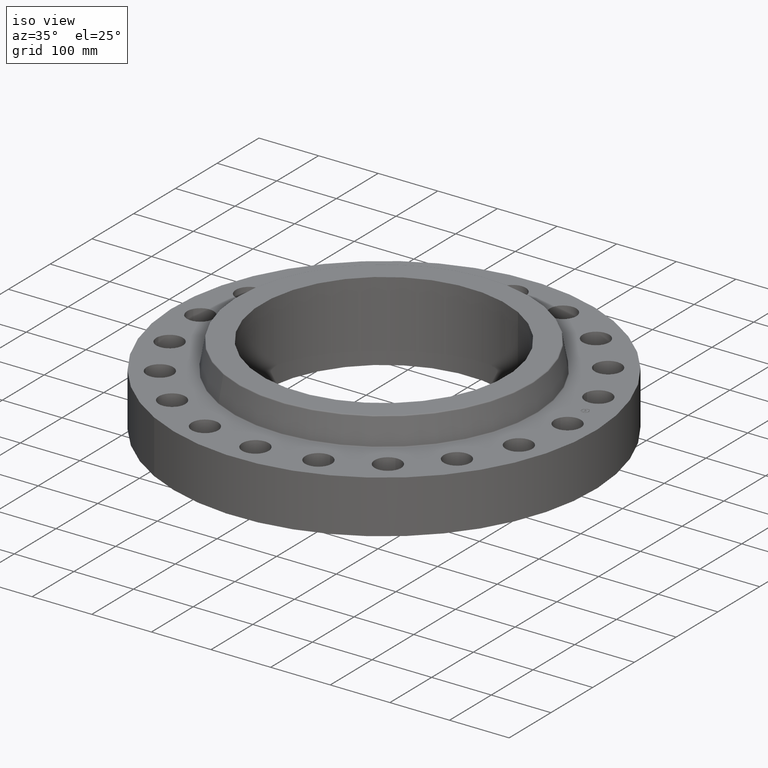
[diagram: clean part render]
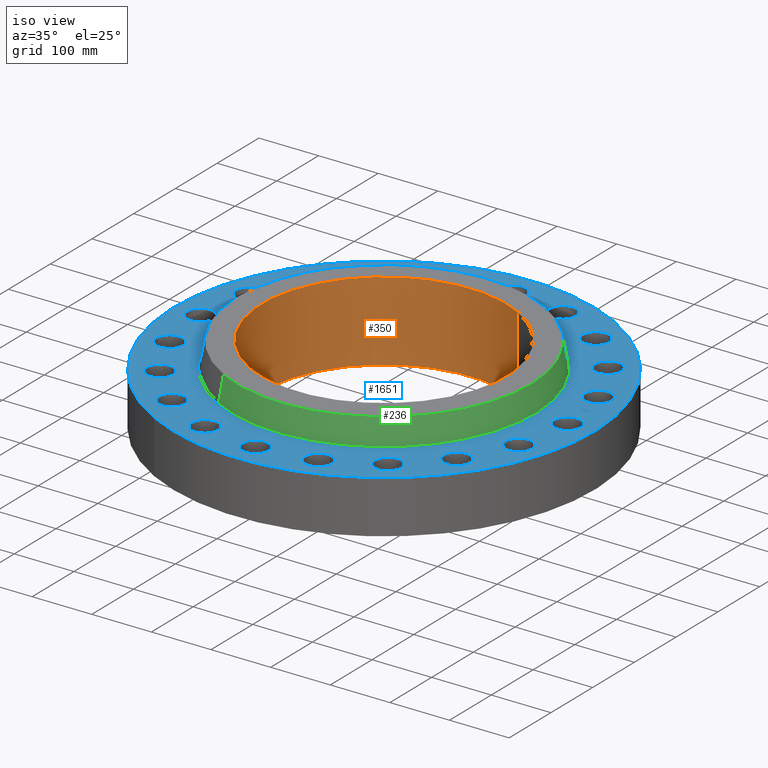
[diagram: same view with three faces highlighted in distinct colors, each labeled with its STEP entity id]
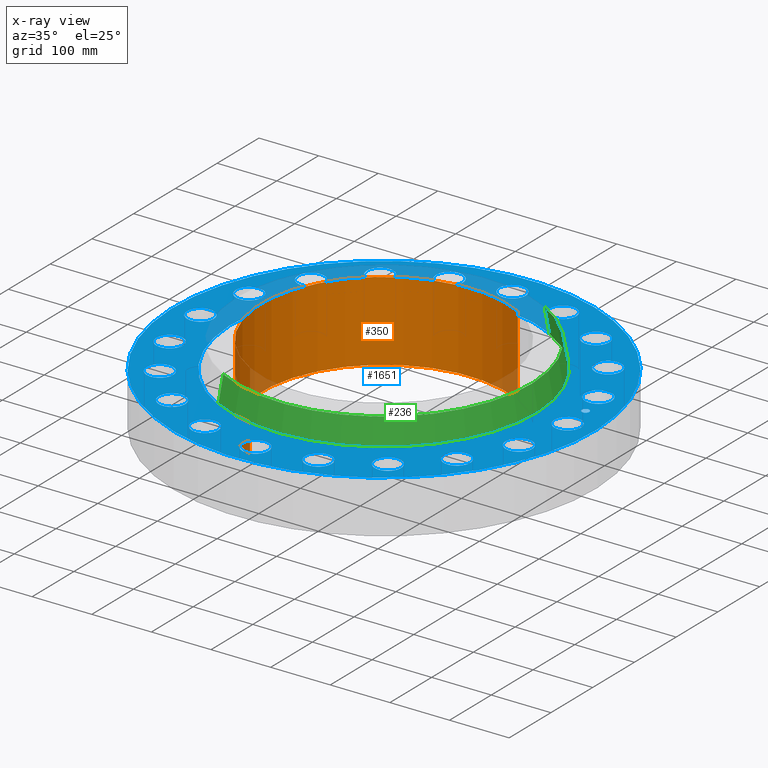
[diagram: x-ray of the same camera — body ghosted, the three highlighted faces saturated]
A machine part, iso view with three faces highlighted in distinct colors.
The next image is the same camera in x-ray (body ghosted, the three faces saturated) — at least one of them is partly hidden behind the body in this view.
Their STEP definitions:

[orange] entity #350 — the highlighted cylindrical surface (partial cylindrical patch) has radius 205.232 mm, axis along (0, 0, -1).
#303=AXIS2_PLACEMENT_3D('Circle Axis2P3D',#301,#302,$) ;
#323=AXIS2_PLACEMENT_3D('Cylinder Axis2P3D',#320,#321,#322) ;
#334=AXIS2_PLACEMENT_3D('Circle Axis2P3D',#332,#333,$) ;
#301=CARTESIAN_POINT('Axis2P3D Location',(0.,0.,5.25000000002)) ;
#305=CARTESIAN_POINT('Vertex',(-3.87375835194,-7.0908671001,5.25000000002)) ;
#307=CARTESIAN_POINT('Vertex',(3.87375835194,7.0908671001,5.25000000002)) ;
#320=CARTESIAN_POINT('Axis2P3D Location',(0.,0.,2.62500000001)) ;
#325=CARTESIAN_POINT('Line Origine',(-3.87375835194,-7.0908671001,2.62500000001)) ;
#329=CARTESIAN_POINT('Vertex',(-3.87375835194,-7.0908671001,-1.17491318512E-014)) ;
#332=CARTESIAN_POINT('Axis2P3D Location',(0.,0.,-1.23086143203E-014)) ;
#336=CARTESIAN_POINT('Vertex',(3.87375835194,7.0908671001,-1.17491318512E-014)) ;
#339=CARTESIAN_POINT('Line Origine',(3.87375835194,7.0908671001,2.62500000001)) ;
#302=DIRECTION('Axis2P3D Direction',(0.,0.,-0.0393700787402)) ;
#321=DIRECTION('Axis2P3D Direction',(0.,0.,-0.0393700787402)) ;
#322=DIRECTION('Axis2P3D XDirection',(0.0188750212049,0.0345504945626,0.)) ;
#326=DIRECTION('Vector Direction',(0.,0.,-0.0393700787402)) ;
#333=DIRECTION('Axis2P3D Direction',(0.,0.,-0.0393700787402)) ;
#340=DIRECTION('Vector Direction',(0.,0.,-0.0393700787402)) ;
#327=VECTOR('Line Direction',#326,0.0393700787402) ;
#341=VECTOR('Line Direction',#340,0.0393700787402) ;
#345=ORIENTED_EDGE('',*,*,#309,.F.) ;
#346=ORIENTED_EDGE('',*,*,#331,.T.) ;
#347=ORIENTED_EDGE('',*,*,#338,.T.) ;
#348=ORIENTED_EDGE('',*,*,#343,.F.) ;
#350=ADVANCED_FACE('PartBody',(#349),#324,.F.) ;
#304=CIRCLE('generated circle',#303,8.08000000003) ;
#335=CIRCLE('generated circle',#334,8.08000000003) ;
#324=CYLINDRICAL_SURFACE('generated cylinder',#323,8.08000000003) ;
#309=EDGE_CURVE('',#306,#308,#304,.T.) ;
#331=EDGE_CURVE('',#306,#330,#328,.T.) ;
#338=EDGE_CURVE('',#330,#337,#335,.T.) ;
#343=EDGE_CURVE('',#308,#337,#342,.T.) ;
#344=EDGE_LOOP('',(#345,#346,#347,#348)) ;
#349=FACE_OUTER_BOUND('',#344,.T.) ;
#328=LINE('Line',#325,#327) ;
#342=LINE('Line',#339,#341) ;
#306=VERTEX_POINT('',#305) ;
#308=VERTEX_POINT('',#307) ;
#330=VERTEX_POINT('',#329) ;
#337=VERTEX_POINT('',#336) ;

[blue] entity #1651 — the highlighted planar face has unit normal (0, 0, -1).
#65=AXIS2_PLACEMENT_3D('Circle Axis2P3D',#63,#64,$) ;
#82=AXIS2_PLACEMENT_3D('Circle Axis2P3D',#80,#81,$) ;
#115=AXIS2_PLACEMENT_3D('Circle Axis2P3D',#113,#114,$) ;
#139=AXIS2_PLACEMENT_3D('Circle Axis2P3D',#137,#138,$) ;
#156=AXIS2_PLACEMENT_3D('Circle Axis2P3D',#154,#155,$) ;
#191=AXIS2_PLACEMENT_3D('Circle Axis2P3D',#189,#190,$) ;
#744=AXIS2_PLACEMENT_3D('Circle Axis2P3D',#742,#743,$) ;
#756=AXIS2_PLACEMENT_3D('Circle Axis2P3D',#754,#755,$) ;
#787=AXIS2_PLACEMENT_3D('Circle Axis2P3D',#785,#786,$) ;
#799=AXIS2_PLACEMENT_3D('Circle Axis2P3D',#797,#798,$) ;
#830=AXIS2_PLACEMENT_3D('Circle Axis2P3D',#828,#829,$) ;
#842=AXIS2_PLACEMENT_3D('Circle Axis2P3D',#840,#841,$) ;
#873=AXIS2_PLACEMENT_3D('Circle Axis2P3D',#871,#872,$) ;
#885=AXIS2_PLACEMENT_3D('Circle Axis2P3D',#883,#884,$) ;
#916=AXIS2_PLACEMENT_3D('Circle Axis2P3D',#914,#915,$) ;
#928=AXIS2_PLACEMENT_3D('Circle Axis2P3D',#926,#927,$) ;
#959=AXIS2_PLACEMENT_3D('Circle Axis2P3D',#957,#958,$) ;
#971=AXIS2_PLACEMENT_3D('Circle Axis2P3D',#969,#970,$) ;
#1002=AXIS2_PLACEMENT_3D('Circle Axis2P3D',#1000,#1001,$) ;
#1014=AXIS2_PLACEMENT_3D('Circle Axis2P3D',#1012,#1013,$) ;
#1045=AXIS2_PLACEMENT_3D('Circle Axis2P3D',#1043,#1044,$) ;
#1057=AXIS2_PLACEMENT_3D('Circle Axis2P3D',#1055,#1056,$) ;
#1088=AXIS2_PLACEMENT_3D('Circle Axis2P3D',#1086,#1087,$) ;
#1100=AXIS2_PLACEMENT_3D('Circle Axis2P3D',#1098,#1099,$) ;
#1131=AXIS2_PLACEMENT_3D('Circle Axis2P3D',#1129,#1130,$) ;
#1143=AXIS2_PLACEMENT_3D('Circle Axis2P3D',#1141,#1142,$) ;
#1174=AXIS2_PLACEMENT_3D('Circle Axis2P3D',#1172,#1173,$) ;
#1186=AXIS2_PLACEMENT_3D('Circle Axis2P3D',#1184,#1185,$) ;
#1217=AXIS2_PLACEMENT_3D('Circle Axis2P3D',#1215,#1216,$) ;
#1229=AXIS2_PLACEMENT_3D('Circle Axis2P3D',#1227,#1228,$) ;
#1260=AXIS2_PLACEMENT_3D('Circle Axis2P3D',#1258,#1259,$) ;
#1272=AXIS2_PLACEMENT_3D('Circle Axis2P3D',#1270,#1271,$) ;
#1303=AXIS2_PLACEMENT_3D('Circle Axis2P3D',#1301,#1302,$) ;
#1315=AXIS2_PLACEMENT_3D('Circle Axis2P3D',#1313,#1314,$) ;
#1346=AXIS2_PLACEMENT_3D('Circle Axis2P3D',#1344,#1345,$) ;
#1358=AXIS2_PLACEMENT_3D('Circle Axis2P3D',#1356,#1357,$) ;
#1389=AXIS2_PLACEMENT_3D('Circle Axis2P3D',#1387,#1388,$) ;
#1401=AXIS2_PLACEMENT_3D('Circle Axis2P3D',#1399,#1400,$) ;
#1432=AXIS2_PLACEMENT_3D('Circle Axis2P3D',#1430,#1431,$) ;
#1444=AXIS2_PLACEMENT_3D('Circle Axis2P3D',#1442,#1443,$) ;
#1475=AXIS2_PLACEMENT_3D('Circle Axis2P3D',#1473,#1474,$) ;
#1487=AXIS2_PLACEMENT_3D('Circle Axis2P3D',#1485,#1486,$) ;
#1518=AXIS2_PLACEMENT_3D('Circle Axis2P3D',#1516,#1517,$) ;
#1530=AXIS2_PLACEMENT_3D('Circle Axis2P3D',#1528,#1529,$) ;
#1543=AXIS2_PLACEMENT_3D('Plane Axis2P3D',#1540,#1541,#1542) ;
#1635=AXIS2_PLACEMENT_3D('Circle Axis2P3D',#1633,#1634,$) ;
#1644=AXIS2_PLACEMENT_3D('Circle Axis2P3D',#1642,#1643,$) ;
#46=CARTESIAN_POINT('Vertex',(11.3571152584,0.41949734628,3.50000000001)) ;
#60=CARTESIAN_POINT('Vertex',(12.8928847417,-0.41949734628,3.50000000001)) ;
#63=CARTESIAN_POINT('Axis2P3D Location',(12.125,0.,3.50000000001)) ;
#80=CARTESIAN_POINT('Axis2P3D Location',(12.125,0.,3.50000000001)) ;
#110=CARTESIAN_POINT('Vertex',(-6.65202934816,-12.1764580463,3.50000000001)) ;
#113=CARTESIAN_POINT('Axis2P3D Location',(0.,0.,3.50000000001)) ;
#117=CARTESIAN_POINT('Vertex',(6.65202934816,12.1764580463,3.50000000001)) ;
#137=CARTESIAN_POINT('Axis2P3D Location',(0.,0.,3.50000000001)) ;
#154=CARTESIAN_POINT('Axis2P3D Location',(0.,0.,3.50000000001)) ;
#158=CARTESIAN_POINT('Vertex',(4.81839253362,8.82000837118,3.50000000001)) ;
#160=CARTESIAN_POINT('Vertex',(-4.81839253362,-8.82000837118,3.50000000001)) ;
#189=CARTESIAN_POINT('Axis2P3D Location',(0.,0.,3.50000000001)) ;
#732=CARTESIAN_POINT('Vertex',(-10.9308902819,3.11057593717,3.50000000001)) ;
#739=CARTESIAN_POINT('Vertex',(-12.1322302383,4.38308617645,3.50000000001)) ;
#742=CARTESIAN_POINT('Axis2P3D Location',(-11.5315602601,3.74683105681,3.50000000001)) ;
#754=CARTESIAN_POINT('Axis2P3D Location',(-11.5315602601,3.74683105681,3.50000000001)) ;
#775=CARTESIAN_POINT('Vertex',(9.43467360463,-6.33616437523,3.50000000001)) ;
#782=CARTESIAN_POINT('Vertex',(10.183988509,-7.91762799292,3.50000000001)) ;
#785=CARTESIAN_POINT('Axis2P3D Location',(9.80933105684,-7.12689618407,3.50000000001)) ;
#797=CARTESIAN_POINT('Axis2P3D Location',(9.80933105684,-7.12689618407,3.50000000001)) ;
#818=CARTESIAN_POINT('Vertex',(-9.43467360463,6.33616437523,3.50000000001)) ;
#825=CARTESIAN_POINT('Vertex',(-10.183988509,7.91762799292,3.50000000001)) ;
#828=CARTESIAN_POINT('Axis2P3D Location',(-9.80933105684,7.12689618407,3.50000000001)) ;
#840=CARTESIAN_POINT('Axis2P3D Location',(-9.80933105684,7.12689618407,3.50000000001)) ;
#861=CARTESIAN_POINT('Vertex',(7.0149253397,-8.94152489759,3.50000000001)) ;
#868=CARTESIAN_POINT('Vertex',(7.23886702845,-10.6771372161,3.50000000001)) ;
#871=CARTESIAN_POINT('Axis2P3D Location',(7.12689618407,-9.80933105684,3.50000000001)) ;
#883=CARTESIAN_POINT('Axis2P3D Location',(7.12689618407,-9.80933105684,3.50000000001)) ;
#904=CARTESIAN_POINT('Vertex',(-7.0149253397,8.94152489759,3.50000000001)) ;
#911=CARTESIAN_POINT('Vertex',(-7.23886702845,10.6771372161,3.50000000001)) ;
#914=CARTESIAN_POINT('Axis2P3D Location',(-7.12689618407,9.80933105684,3.50000000001)) ;
#926=CARTESIAN_POINT('Axis2P3D Location',(-7.12689618407,9.80933105684,3.50000000001)) ;
#947=CARTESIAN_POINT('Vertex',(3.90850730667,-10.6716266637,3.50000000001)) ;
#954=CARTESIAN_POINT('Vertex',(3.58515480696,-12.3914938565,3.50000000001)) ;
#957=CARTESIAN_POINT('Axis2P3D Location',(3.74683105681,-11.5315602601,3.50000000001)) ;
#969=CARTESIAN_POINT('Axis2P3D Location',(3.74683105681,-11.5315602601,3.50000000001)) ;
#990=CARTESIAN_POINT('Vertex',(-3.90850730667,10.6716266637,3.50000000001)) ;
#997=CARTESIAN_POINT('Vertex',(-3.58515480696,12.3914938565,3.50000000001)) ;
#1000=CARTESIAN_POINT('Axis2P3D Location',(-3.74683105681,11.5315602601,3.50000000001)) ;
#1012=CARTESIAN_POINT('Axis2P3D Location',(-3.74683105681,11.5315602601,3.50000000001)) ;
#1033=CARTESIAN_POINT('Vertex',(0.41949734628,-11.3571152584,3.50000000001)) ;
#1040=CARTESIAN_POINT('Vertex',(-0.41949734628,-12.8928847417,3.50000000001)) ;
#1043=CARTESIAN_POINT('Axis2P3D Location',(3.43473295671E-015,-12.125,3.50000000001)) ;
#1055=CARTESIAN_POINT('Axis2P3D Location',(3.43473295671E-015,-12.125,3.50000000001)) ;
#1076=CARTESIAN_POINT('Vertex',(-0.41949734628,11.3571152584,3.50000000001)) ;
#1083=CARTESIAN_POINT('Vertex',(0.41949734628,12.8928847417,3.50000000001)) ;
#1086=CARTESIAN_POINT('Axis2P3D Location',(-1.29964897049E-014,12.125,3.50000000001)) ;
#1098=CARTESIAN_POINT('Axis2P3D Location',(-1.29964897049E-014,12.125,3.50000000001)) ;
#1119=CARTESIAN_POINT('Vertex',(-3.11057593717,-10.9308902819,3.50000000001)) ;
#1126=CARTESIAN_POINT('Vertex',(-4.38308617645,-12.1322302383,3.50000000001)) ;
#1129=CARTESIAN_POINT('Axis2P3D Location',(-3.74683105681,-11.5315602601,3.50000000001)) ;
#1141=CARTESIAN_POINT('Axis2P3D Location',(-3.74683105681,-11.5315602601,3.50000000001)) ;
#1162=CARTESIAN_POINT('Vertex',(3.11057593717,10.9308902819,3.50000000001)) ;
#1169=CARTESIAN_POINT('Vertex',(4.38308617645,12.1322302383,3.50000000001)) ;
#1172=CARTESIAN_POINT('Axis2P3D Location',(3.74683105681,11.5315602601,3.50000000001)) ;
#1184=CARTESIAN_POINT('Axis2P3D Location',(3.74683105681,11.5315602601,3.50000000001)) ;
#1205=CARTESIAN_POINT('Vertex',(-6.33616437523,-9.43467360463,3.50000000001)) ;
#1212=CARTESIAN_POINT('Vertex',(-7.91762799292,-10.183988509,3.50000000001)) ;
#1215=CARTESIAN_POINT('Axis2P3D Location',(-7.12689618407,-9.80933105684,3.50000000001)) ;
#1227=CARTESIAN_POINT('Axis2P3D Location',(-7.12689618407,-9.80933105684,3.50000000001)) ;
#1248=CARTESIAN_POINT('Vertex',(6.33616437523,9.43467360463,3.50000000001)) ;
#1255=CARTESIAN_POINT('Vertex',(7.91762799292,10.183988509,3.50000000001)) ;
#1258=CARTESIAN_POINT('Axis2P3D Location',(7.12689618407,9.80933105684,3.50000000001)) ;
#1270=CARTESIAN_POINT('Axis2P3D Location',(7.12689618407,9.80933105684,3.50000000001)) ;
#1291=CARTESIAN_POINT('Vertex',(-8.94152489759,-7.0149253397,3.50000000001)) ;
#1298=CARTESIAN_POINT('Vertex',(-10.6771372161,-7.23886702845,3.50000000001)) ;
#1301=CARTESIAN_POINT('Axis2P3D Location',(-9.80933105684,-7.12689618407,3.50000000001)) ;
#1313=CARTESIAN_POINT('Axis2P3D Location',(-9.80933105684,-7.12689618407,3.50000000001)) ;
#1334=CARTESIAN_POINT('Vertex',(8.94152489759,7.0149253397,3.50000000001)) ;
#1341=CARTESIAN_POINT('Vertex',(10.6771372161,7.23886702845,3.50000000001)) ;
#1344=CARTESIAN_POINT('Axis2P3D Location',(9.80933105684,7.12689618407,3.50000000001)) ;
#1356=CARTESIAN_POINT('Axis2P3D Location',(9.80933105684,7.12689618407,3.50000000001)) ;
#1377=CARTESIAN_POINT('Vertex',(-10.6716266637,-3.90850730667,3.50000000001)) ;
#1384=CARTESIAN_POINT('Vertex',(-12.3914938565,-3.58515480696,3.50000000001)) ;
#1387=CARTESIAN_POINT('Axis2P3D Location',(-11.5315602601,-3.74683105681,3.50000000001)) ;
#1399=CARTESIAN_POINT('Axis2P3D Location',(-11.5315602601,-3.74683105681,3.50000000001)) ;
#1420=CARTESIAN_POINT('Vertex',(10.6716266637,3.90850730667,3.50000000001)) ;
#1427=CARTESIAN_POINT('Vertex',(12.3914938565,3.58515480696,3.50000000001)) ;
#1430=CARTESIAN_POINT('Axis2P3D Location',(11.5315602601,3.74683105681,3.50000000001)) ;
#1442=CARTESIAN_POINT('Axis2P3D Location',(11.5315602601,3.74683105681,3.50000000001)) ;
#1463=CARTESIAN_POINT('Vertex',(-11.3571152584,-0.41949734628,3.50000000001)) ;
#1470=CARTESIAN_POINT('Vertex',(-12.8928847417,0.41949734628,3.50000000001)) ;
#1473=CARTESIAN_POINT('Axis2P3D Location',(-12.125,-6.86946591343E-015,3.50000000001)) ;
#1485=CARTESIAN_POINT('Axis2P3D Location',(-12.125,-6.86946591343E-015,3.50000000001)) ;
#1506=CARTESIAN_POINT('Vertex',(10.9308902819,-3.11057593717,3.50000000001)) ;
#1513=CARTESIAN_POINT('Vertex',(12.1322302383,-4.38308617645,3.50000000001)) ;
#1516=CARTESIAN_POINT('Axis2P3D Location',(11.5315602601,-3.74683105681,3.50000000001)) ;
#1528=CARTESIAN_POINT('Axis2P3D Location',(11.5315602601,-3.74683105681,3.50000000001)) ;
#1540=CARTESIAN_POINT('Axis2P3D Location',(0.,13.8750000001,3.50000000001)) ;
#1633=CARTESIAN_POINT('Axis2P3D Location',(11.9757211298,1.89676788862,3.50000000001)) ;
#1637=CARTESIAN_POINT('Vertex',(11.9370035997,2.14122075292,3.50000000001)) ;
#1639=CARTESIAN_POINT('Vertex',(12.0144386599,1.65231502432,3.50000000001)) ;
#1642=CARTESIAN_POINT('Axis2P3D Location',(11.9757211298,1.89676788862,3.50000000001)) ;
#64=DIRECTION('Axis2P3D Direction',(0.,-0.,-0.0393700787402)) ;
#81=DIRECTION('Axis2P3D Direction',(0.,-0.,-0.0393700787402)) ;
#114=DIRECTION('Axis2P3D Direction',(0.,0.,-0.0393700787402)) ;
#138=DIRECTION('Axis2P3D Direction',(0.,0.,-0.0393700787402)) ;
#155=DIRECTION('Axis2P3D Direction',(0.,0.,-0.0393700787402)) ;
#190=DIRECTION('Axis2P3D Direction',(0.,0.,-0.0393700787402)) ;
#743=DIRECTION('Axis2P3D Direction',(0.,0.,-0.0393700787402)) ;
#755=DIRECTION('Axis2P3D Direction',(0.,0.,-0.0393700787402)) ;
#786=DIRECTION('Axis2P3D Direction',(0.,-0.,-0.0393700787402)) ;
#798=DIRECTION('Axis2P3D Direction',(0.,-0.,-0.0393700787402)) ;
#829=DIRECTION('Axis2P3D Direction',(0.,0.,-0.0393700787402)) ;
#841=DIRECTION('Axis2P3D Direction',(0.,0.,-0.0393700787402)) ;
#872=DIRECTION('Axis2P3D Direction',(0.,-0.,-0.0393700787402)) ;
#884=DIRECTION('Axis2P3D Direction',(0.,-0.,-0.0393700787402)) ;
#915=DIRECTION('Axis2P3D Direction',(0.,0.,-0.0393700787402)) ;
#927=DIRECTION('Axis2P3D Direction',(0.,0.,-0.0393700787402)) ;
#958=DIRECTION('Axis2P3D Direction',(0.,-0.,-0.0393700787402)) ;
#970=DIRECTION('Axis2P3D Direction',(0.,-0.,-0.0393700787402)) ;
#1001=DIRECTION('Axis2P3D Direction',(0.,0.,-0.0393700787402)) ;
#1013=DIRECTION('Axis2P3D Direction',(0.,0.,-0.0393700787402)) ;
#1044=DIRECTION('Axis2P3D Direction',(0.,-0.,-0.0393700787402)) ;
#1056=DIRECTION('Axis2P3D Direction',(0.,-0.,-0.0393700787402)) ;
#1087=DIRECTION('Axis2P3D Direction',(0.,0.,-0.0393700787402)) ;
#1099=DIRECTION('Axis2P3D Direction',(0.,0.,-0.0393700787402)) ;
#1130=DIRECTION('Axis2P3D Direction',(-0.,0.,-0.0393700787402)) ;
#1142=DIRECTION('Axis2P3D Direction',(-0.,0.,-0.0393700787402)) ;
#1173=DIRECTION('Axis2P3D Direction',(0.,0.,-0.0393700787402)) ;
#1185=DIRECTION('Axis2P3D Direction',(0.,0.,-0.0393700787402)) ;
#1216=DIRECTION('Axis2P3D Direction',(-0.,0.,-0.0393700787402)) ;
#1228=DIRECTION('Axis2P3D Direction',(-0.,0.,-0.0393700787402)) ;
#1259=DIRECTION('Axis2P3D Direction',(0.,0.,-0.0393700787402)) ;
#1271=DIRECTION('Axis2P3D Direction',(0.,0.,-0.0393700787402)) ;
#1302=DIRECTION('Axis2P3D Direction',(-0.,0.,-0.0393700787402)) ;
#1314=DIRECTION('Axis2P3D Direction',(-0.,0.,-0.0393700787402)) ;
#1345=DIRECTION('Axis2P3D Direction',(0.,0.,-0.0393700787402)) ;
#1357=DIRECTION('Axis2P3D Direction',(0.,0.,-0.0393700787402)) ;
#1388=DIRECTION('Axis2P3D Direction',(-0.,0.,-0.0393700787402)) ;
#1400=DIRECTION('Axis2P3D Direction',(-0.,0.,-0.0393700787402)) ;
#1431=DIRECTION('Axis2P3D Direction',(0.,0.,-0.0393700787402)) ;
#1443=DIRECTION('Axis2P3D Direction',(0.,0.,-0.0393700787402)) ;
#1474=DIRECTION('Axis2P3D Direction',(-0.,0.,-0.0393700787402)) ;
#1486=DIRECTION('Axis2P3D Direction',(-0.,0.,-0.0393700787402)) ;
#1517=DIRECTION('Axis2P3D Direction',(0.,-0.,-0.0393700787402)) ;
#1529=DIRECTION('Axis2P3D Direction',(0.,-0.,-0.0393700787402)) ;
#1541=DIRECTION('Axis2P3D Direction',(0.,0.,-0.0393700787402)) ;
#1542=DIRECTION('Axis2P3D XDirection',(0.0393700787402,0.,0.)) ;
#1634=DIRECTION('Axis2P3D Direction',(0.,0.,-0.0393700787402)) ;
#1643=DIRECTION('Axis2P3D Direction',(0.,0.,-0.0393700787402)) ;
#1546=ORIENTED_EDGE('',*,*,#141,.F.) ;
#1547=ORIENTED_EDGE('',*,*,#119,.F.) ;
#1550=ORIENTED_EDGE('',*,*,#67,.T.) ;
#1551=ORIENTED_EDGE('',*,*,#84,.T.) ;
#1554=ORIENTED_EDGE('',*,*,#193,.T.) ;
#1555=ORIENTED_EDGE('',*,*,#162,.T.) ;
#1558=ORIENTED_EDGE('',*,*,#1532,.T.) ;
#1559=ORIENTED_EDGE('',*,*,#1520,.T.) ;
#1562=ORIENTED_EDGE('',*,*,#801,.T.) ;
#1563=ORIENTED_EDGE('',*,*,#789,.T.) ;
#1566=ORIENTED_EDGE('',*,*,#887,.T.) ;
#1567=ORIENTED_EDGE('',*,*,#875,.T.) ;
#1570=ORIENTED_EDGE('',*,*,#973,.T.) ;
#1571=ORIENTED_EDGE('',*,*,#961,.T.) ;
#1574=ORIENTED_EDGE('',*,*,#1059,.T.) ;
#1575=ORIENTED_EDGE('',*,*,#1047,.T.) ;
#1578=ORIENTED_EDGE('',*,*,#1145,.T.) ;
#1579=ORIENTED_EDGE('',*,*,#1133,.T.) ;
#1582=ORIENTED_EDGE('',*,*,#1231,.T.) ;
#1583=ORIENTED_EDGE('',*,*,#1219,.T.) ;
#1586=ORIENTED_EDGE('',*,*,#1317,.T.) ;
#1587=ORIENTED_EDGE('',*,*,#1305,.T.) ;
#1590=ORIENTED_EDGE('',*,*,#1403,.T.) ;
#1591=ORIENTED_EDGE('',*,*,#1391,.T.) ;
#1594=ORIENTED_EDGE('',*,*,#1489,.T.) ;
#1595=ORIENTED_EDGE('',*,*,#1477,.T.) ;
#1598=ORIENTED_EDGE('',*,*,#758,.T.) ;
#1599=ORIENTED_EDGE('',*,*,#746,.T.) ;
#1602=ORIENTED_EDGE('',*,*,#844,.T.) ;
#1603=ORIENTED_EDGE('',*,*,#832,.T.) ;
#1606=ORIENTED_EDGE('',*,*,#930,.T.) ;
#1607=ORIENTED_EDGE('',*,*,#918,.T.) ;
#1610=ORIENTED_EDGE('',*,*,#1016,.T.) ;
#1611=ORIENTED_EDGE('',*,*,#1004,.T.) ;
#1614=ORIENTED_EDGE('',*,*,#1102,.T.) ;
#1615=ORIENTED_EDGE('',*,*,#1090,.T.) ;
#1618=ORIENTED_EDGE('',*,*,#1188,.T.) ;
#1619=ORIENTED_EDGE('',*,*,#1176,.T.) ;
#1622=ORIENTED_EDGE('',*,*,#1274,.T.) ;
#1623=ORIENTED_EDGE('',*,*,#1262,.T.) ;
#1626=ORIENTED_EDGE('',*,*,#1360,.T.) ;
#1627=ORIENTED_EDGE('',*,*,#1348,.T.) ;
#1630=ORIENTED_EDGE('',*,*,#1446,.T.) ;
#1631=ORIENTED_EDGE('',*,*,#1434,.T.) ;
#1648=ORIENTED_EDGE('',*,*,#1641,.T.) ;
#1649=ORIENTED_EDGE('',*,*,#1646,.T.) ;
#1552=FACE_BOUND('',#1549,.T.) ;
#1556=FACE_BOUND('',#1553,.T.) ;
#1560=FACE_BOUND('',#1557,.T.) ;
#1564=FACE_BOUND('',#1561,.T.) ;
#1568=FACE_BOUND('',#1565,.T.) ;
#1572=FACE_BOUND('',#1569,.T.) ;
#1576=FACE_BOUND('',#1573,.T.) ;
#1580=FACE_BOUND('',#1577,.T.) ;
#1584=FACE_BOUND('',#1581,.T.) ;
#1588=FACE_BOUND('',#1585,.T.) ;
#1592=FACE_BOUND('',#1589,.T.) ;
#1596=FACE_BOUND('',#1593,.T.) ;
#1600=FACE_BOUND('',#1597,.T.) ;
#1604=FACE_BOUND('',#1601,.T.) ;
#1608=FACE_BOUND('',#1605,.T.) ;
#1612=FACE_BOUND('',#1609,.T.) ;
#1616=FACE_BOUND('',#1613,.T.) ;
#1620=FACE_BOUND('',#1617,.T.) ;
#1624=FACE_BOUND('',#1621,.T.) ;
#1628=FACE_BOUND('',#1625,.T.) ;
#1632=FACE_BOUND('',#1629,.T.) ;
#1650=FACE_BOUND('',#1647,.T.) ;
#1651=ADVANCED_FACE('PartBody',(#1548,#1552,#1556,#1560,#1564,#1568,#1572,#1576,#1580,#1584,#1588,#1592,#1596,#1600,#1604,#1608,#1612,#1616,#1620,#1624,#1628,#1632,#1650),#1544,.F.) ;
#66=CIRCLE('generated circle',#65,0.875000000004) ;
#83=CIRCLE('generated circle',#82,0.875000000004) ;
#116=CIRCLE('generated circle',#115,13.8750000001) ;
#140=CIRCLE('generated circle',#139,13.8750000001) ;
#157=CIRCLE('generated circle',#156,10.0503459779) ;
#192=CIRCLE('generated circle',#191,10.0503459779) ;
#745=CIRCLE('generated circle',#744,0.875000000004) ;
#757=CIRCLE('generated circle',#756,0.875000000004) ;
#788=CIRCLE('generated circle',#787,0.875000000004) ;
#800=CIRCLE('generated circle',#799,0.875000000004) ;
#831=CIRCLE('generated circle',#830,0.875000000004) ;
#843=CIRCLE('generated circle',#842,0.875000000004) ;
#874=CIRCLE('generated circle',#873,0.875000000004) ;
#886=CIRCLE('generated circle',#885,0.875000000004) ;
#917=CIRCLE('generated circle',#916,0.875000000004) ;
#929=CIRCLE('generated circle',#928,0.875000000004) ;
#960=CIRCLE('generated circle',#959,0.875000000004) ;
#972=CIRCLE('generated circle',#971,0.875000000004) ;
#1003=CIRCLE('generated circle',#1002,0.875000000004) ;
#1015=CIRCLE('generated circle',#1014,0.875000000004) ;
#1046=CIRCLE('generated circle',#1045,0.875000000004) ;
#1058=CIRCLE('generated circle',#1057,0.875000000004) ;
#1089=CIRCLE('generated circle',#1088,0.875000000004) ;
#1101=CIRCLE('generated circle',#1100,0.875000000004) ;
#1132=CIRCLE('generated circle',#1131,0.875000000004) ;
#1144=CIRCLE('generated circle',#1143,0.875000000004) ;
#1175=CIRCLE('generated circle',#1174,0.875000000004) ;
#1187=CIRCLE('generated circle',#1186,0.875000000004) ;
#1218=CIRCLE('generated circle',#1217,0.875000000003) ;
#1230=CIRCLE('generated circle',#1229,0.875000000003) ;
#1261=CIRCLE('generated circle',#1260,0.875000000003) ;
#1273=CIRCLE('generated circle',#1272,0.875000000003) ;
#1304=CIRCLE('generated circle',#1303,0.875000000004) ;
#1316=CIRCLE('generated circle',#1315,0.875000000004) ;
#1347=CIRCLE('generated circle',#1346,0.875000000004) ;
#1359=CIRCLE('generated circle',#1358,0.875000000004) ;
#1390=CIRCLE('generated circle',#1389,0.875000000004) ;
#1402=CIRCLE('generated circle',#1401,0.875000000004) ;
#1433=CIRCLE('generated circle',#1432,0.875000000004) ;
#1445=CIRCLE('generated circle',#1444,0.875000000004) ;
#1476=CIRCLE('generated circle',#1475,0.875000000004) ;
#1488=CIRCLE('generated circle',#1487,0.875000000004) ;
#1519=CIRCLE('generated circle',#1518,0.875000000004) ;
#1531=CIRCLE('generated circle',#1530,0.875000000004) ;
#1636=CIRCLE('generated circle',#1635,0.247500000001) ;
#1645=CIRCLE('generated circle',#1644,0.247500000001) ;
#67=EDGE_CURVE('',#47,#61,#66,.T.) ;
#84=EDGE_CURVE('',#61,#47,#83,.T.) ;
#119=EDGE_CURVE('',#111,#118,#116,.T.) ;
#141=EDGE_CURVE('',#118,#111,#140,.T.) ;
#162=EDGE_CURVE('',#159,#161,#157,.T.) ;
#193=EDGE_CURVE('',#161,#159,#192,.T.) ;
#746=EDGE_CURVE('',#733,#740,#745,.T.) ;
#758=EDGE_CURVE('',#740,#733,#757,.T.) ;
#789=EDGE_CURVE('',#776,#783,#788,.T.) ;
#801=EDGE_CURVE('',#783,#776,#800,.T.) ;
#832=EDGE_CURVE('',#819,#826,#831,.T.) ;
#844=EDGE_CURVE('',#826,#819,#843,.T.) ;
#875=EDGE_CURVE('',#862,#869,#874,.T.) ;
#887=EDGE_CURVE('',#869,#862,#886,.T.) ;
#918=EDGE_CURVE('',#905,#912,#917,.T.) ;
#930=EDGE_CURVE('',#912,#905,#929,.T.) ;
#961=EDGE_CURVE('',#948,#955,#960,.T.) ;
#973=EDGE_CURVE('',#955,#948,#972,.T.) ;
#1004=EDGE_CURVE('',#991,#998,#1003,.T.) ;
#1016=EDGE_CURVE('',#998,#991,#1015,.T.) ;
#1047=EDGE_CURVE('',#1034,#1041,#1046,.T.) ;
#1059=EDGE_CURVE('',#1041,#1034,#1058,.T.) ;
#1090=EDGE_CURVE('',#1077,#1084,#1089,.T.) ;
#1102=EDGE_CURVE('',#1084,#1077,#1101,.T.) ;
#1133=EDGE_CURVE('',#1120,#1127,#1132,.T.) ;
#1145=EDGE_CURVE('',#1127,#1120,#1144,.T.) ;
#1176=EDGE_CURVE('',#1163,#1170,#1175,.T.) ;
#1188=EDGE_CURVE('',#1170,#1163,#1187,.T.) ;
#1219=EDGE_CURVE('',#1206,#1213,#1218,.T.) ;
#1231=EDGE_CURVE('',#1213,#1206,#1230,.T.) ;
#1262=EDGE_CURVE('',#1249,#1256,#1261,.T.) ;
#1274=EDGE_CURVE('',#1256,#1249,#1273,.T.) ;
#1305=EDGE_CURVE('',#1292,#1299,#1304,.T.) ;
#1317=EDGE_CURVE('',#1299,#1292,#1316,.T.) ;
#1348=EDGE_CURVE('',#1335,#1342,#1347,.T.) ;
#1360=EDGE_CURVE('',#1342,#1335,#1359,.T.) ;
#1391=EDGE_CURVE('',#1378,#1385,#1390,.T.) ;
#1403=EDGE_CURVE('',#1385,#1378,#1402,.T.) ;
#1434=EDGE_CURVE('',#1421,#1428,#1433,.T.) ;
#1446=EDGE_CURVE('',#1428,#1421,#1445,.T.) ;
#1477=EDGE_CURVE('',#1464,#1471,#1476,.T.) ;
#1489=EDGE_CURVE('',#1471,#1464,#1488,.T.) ;
#1520=EDGE_CURVE('',#1507,#1514,#1519,.T.) ;
#1532=EDGE_CURVE('',#1514,#1507,#1531,.T.) ;
#1641=EDGE_CURVE('',#1638,#1640,#1636,.T.) ;
#1646=EDGE_CURVE('',#1640,#1638,#1645,.T.) ;
#1545=EDGE_LOOP('',(#1546,#1547)) ;
#1549=EDGE_LOOP('',(#1550,#1551)) ;
#1553=EDGE_LOOP('',(#1554,#1555)) ;
#1557=EDGE_LOOP('',(#1558,#1559)) ;
#1561=EDGE_LOOP('',(#1562,#1563)) ;
#1565=EDGE_LOOP('',(#1566,#1567)) ;
#1569=EDGE_LOOP('',(#1570,#1571)) ;
#1573=EDGE_LOOP('',(#1574,#1575)) ;
#1577=EDGE_LOOP('',(#1578,#1579)) ;
#1581=EDGE_LOOP('',(#1582,#1583)) ;
#1585=EDGE_LOOP('',(#1586,#1587)) ;
#1589=EDGE_LOOP('',(#1590,#1591)) ;
#1593=EDGE_LOOP('',(#1594,#1595)) ;
#1597=EDGE_LOOP('',(#1598,#1599)) ;
#1601=EDGE_LOOP('',(#1602,#1603)) ;
#1605=EDGE_LOOP('',(#1606,#1607)) ;
#1609=EDGE_LOOP('',(#1610,#1611)) ;
#1613=EDGE_LOOP('',(#1614,#1615)) ;
#1617=EDGE_LOOP('',(#1618,#1619)) ;
#1621=EDGE_LOOP('',(#1622,#1623)) ;
#1625=EDGE_LOOP('',(#1626,#1627)) ;
#1629=EDGE_LOOP('',(#1630,#1631)) ;
#1647=EDGE_LOOP('',(#1648,#1649)) ;
#1548=FACE_OUTER_BOUND('',#1545,.T.) ;
#1544=PLANE('',#1543) ;
#47=VERTEX_POINT('',#46) ;
#61=VERTEX_POINT('',#60) ;
#111=VERTEX_POINT('',#110) ;
#118=VERTEX_POINT('',#117) ;
#159=VERTEX_POINT('',#158) ;
#161=VERTEX_POINT('',#160) ;
#733=VERTEX_POINT('',#732) ;
#740=VERTEX_POINT('',#739) ;
#776=VERTEX_POINT('',#775) ;
#783=VERTEX_POINT('',#782) ;
#819=VERTEX_POINT('',#818) ;
#826=VERTEX_POINT('',#825) ;
#862=VERTEX_POINT('',#861) ;
#869=VERTEX_POINT('',#868) ;
#905=VERTEX_POINT('',#904) ;
#912=VERTEX_POINT('',#911) ;
#948=VERTEX_POINT('',#947) ;
#955=VERTEX_POINT('',#954) ;
#991=VERTEX_POINT('',#990) ;
#998=VERTEX_POINT('',#997) ;
#1034=VERTEX_POINT('',#1033) ;
#1041=VERTEX_POINT('',#1040) ;
#1077=VERTEX_POINT('',#1076) ;
#1084=VERTEX_POINT('',#1083) ;
#1120=VERTEX_POINT('',#1119) ;
#1127=VERTEX_POINT('',#1126) ;
#1163=VERTEX_POINT('',#1162) ;
#1170=VERTEX_POINT('',#1169) ;
#1206=VERTEX_POINT('',#1205) ;
#1213=VERTEX_POINT('',#1212) ;
#1249=VERTEX_POINT('',#1248) ;
#1256=VERTEX_POINT('',#1255) ;
#1292=VERTEX_POINT('',#1291) ;
#1299=VERTEX_POINT('',#1298) ;
#1335=VERTEX_POINT('',#1334) ;
#1342=VERTEX_POINT('',#1341) ;
#1378=VERTEX_POINT('',#1377) ;
#1385=VERTEX_POINT('',#1384) ;
#1421=VERTEX_POINT('',#1420) ;
#1428=VERTEX_POINT('',#1427) ;
#1464=VERTEX_POINT('',#1463) ;
#1471=VERTEX_POINT('',#1470) ;
#1507=VERTEX_POINT('',#1506) ;
#1514=VERTEX_POINT('',#1513) ;
#1638=VERTEX_POINT('',#1637) ;
#1640=VERTEX_POINT('',#1639) ;

[green] entity #236 — the highlighted conical surface has half-angle 10 deg.
#172=AXIS2_PLACEMENT_3D('Circle Axis2P3D',#170,#171,$) ;
#209=AXIS2_PLACEMENT_3D('Cone Axis2P3D',#206,#207,#208) ;
#220=AXIS2_PLACEMENT_3D('Circle Axis2P3D',#218,#219,$) ;
#167=CARTESIAN_POINT('Vertex',(4.79006401437,8.76815336453,3.54958110935)) ;
#170=CARTESIAN_POINT('Axis2P3D Location',(0.,0.,3.54958110935)) ;
#174=CARTESIAN_POINT('Vertex',(-4.79006401437,-8.76815336453,3.54958110935)) ;
#206=CARTESIAN_POINT('Axis2P3D Location',(0.,0.,5.20041889068)) ;
#211=CARTESIAN_POINT('Line Origine',(4.72028668558,8.64042682091,4.37500000002)) ;
#215=CARTESIAN_POINT('Vertex',(4.65050935678,8.51270027729,5.20041889068)) ;
#218=CARTESIAN_POINT('Axis2P3D Location',(0.,0.,5.20041889068)) ;
#222=CARTESIAN_POINT('Vertex',(-4.65050935678,-8.51270027729,5.20041889068)) ;
#225=CARTESIAN_POINT('Line Origine',(-4.72028668558,-8.64042682091,4.37500000002)) ;
#171=DIRECTION('Axis2P3D Direction',(0.,0.,-0.0393700787402)) ;
#207=DIRECTION('Axis2P3D Direction',(0.,0.,-0.0393700787402)) ;
#208=DIRECTION('Axis2P3D XDirection',(-0.0188750212049,-0.0345504945626,0.)) ;
#212=DIRECTION('Vector Direction',(0.00327761303565,0.00599963041829,-0.03877195878)) ;
#219=DIRECTION('Axis2P3D Direction',(0.,0.,-0.0393700787402)) ;
#226=DIRECTION('Vector Direction',(-0.00327761303565,-0.00599963041829,-0.03877195878)) ;
#213=VECTOR('Line Direction',#212,0.0393700787402) ;
#227=VECTOR('Line Direction',#226,0.0393700787402) ;
#231=ORIENTED_EDGE('',*,*,#176,.F.) ;
#232=ORIENTED_EDGE('',*,*,#217,.T.) ;
#233=ORIENTED_EDGE('',*,*,#224,.T.) ;
#234=ORIENTED_EDGE('',*,*,#229,.F.) ;
#236=ADVANCED_FACE('PartBody',(#235),#210,.T.) ;
#173=CIRCLE('generated circle',#172,9.99125751273) ;
#221=CIRCLE('generated circle',#220,9.70017027111) ;
#210=CONICAL_SURFACE('Cone',#209,9.70017027111,0.174532925199) ;
#176=EDGE_CURVE('',#168,#175,#173,.T.) ;
#217=EDGE_CURVE('',#168,#216,#214,.F.) ;
#224=EDGE_CURVE('',#216,#223,#221,.T.) ;
#229=EDGE_CURVE('',#175,#223,#228,.F.) ;
#230=EDGE_LOOP('',(#231,#232,#233,#234)) ;
#235=FACE_OUTER_BOUND('',#230,.T.) ;
#214=LINE('Line',#211,#213) ;
#228=LINE('Line',#225,#227) ;
#168=VERTEX_POINT('',#167) ;
#175=VERTEX_POINT('',#174) ;
#216=VERTEX_POINT('',#215) ;
#223=VERTEX_POINT('',#222) ;